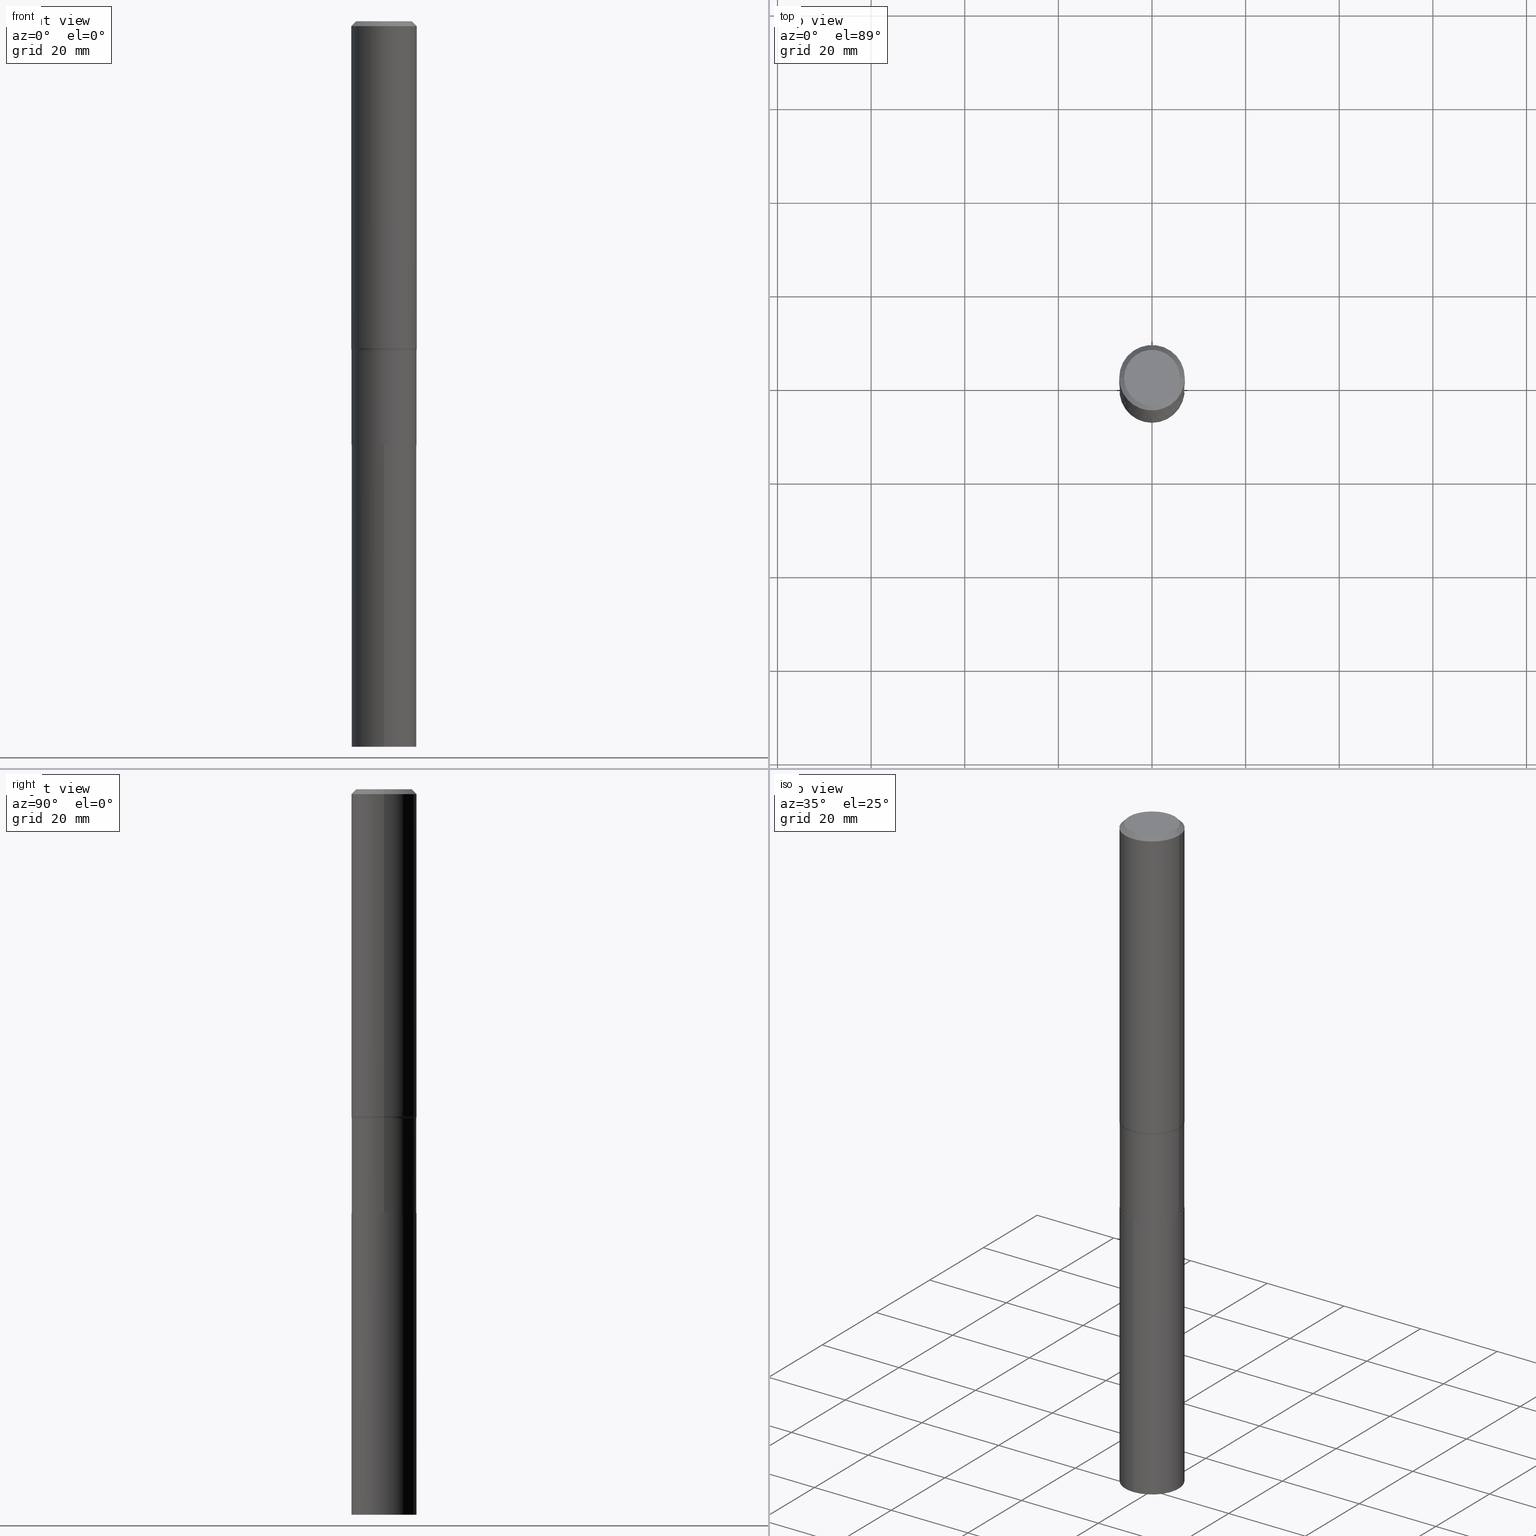
[diagram: canonical four-view strip — front | top / right | iso, engineering-drawing reading convention]
A machine part, canonical four-view strip (front | top / right | iso — engineering-drawing reading convention). The complete STEP part file that produces these views, byte-faithful:
ISO-10303-21;
HEADER;
FILE_DESCRIPTION (( 'STEP AP203' ),
    '1' );
FILE_NAME ('58914.STEP',
    '2024-04-19T14:50:41',
    ( '' ),
    ( '' ),
    'SwSTEP 2.0',
    'SolidWorks 2023',
    '' );
FILE_SCHEMA (( 'CONFIG_CONTROL_DESIGN' ));
ENDSEC;

DATA;
#1 = LINE ( 'NONE', #142, #293 ) ;
#2 = EDGE_LOOP ( 'NONE', ( #33, #403 ) ) ;
#3 = CLOSED_SHELL ( 'NONE', ( #58, #6, #250, #230 ) ) ;
#4 = CIRCLE ( 'NONE', #353, 0.2729500000000000259 ) ;
#5 = DIRECTION ( 'NONE',  ( -2.445078219404103595E-29, 3.492040681344403691E-15, 1.000000000000000000 ) ) ;
#6 = ADVANCED_FACE ( 'NONE', ( #275 ), #156, .F. ) ;
#7 = ORIENTED_EDGE ( 'NONE', *, *, #196, .T. ) ;
#8 = EDGE_CURVE ( 'NONE', #107, #31, #197, .T. ) ;
#9 = EDGE_LOOP ( 'NONE', ( #37, #52, #13, #222 ) ) ;
#10 = CIRCLE ( 'NONE', #187, 0.2729500000000000259 ) ;
#11 = AXIS2_PLACEMENT_3D ( 'NONE', #437, #335, #83 ) ;
#12 = LOCAL_TIME ( 10, 50, 41.00000000000000000, #418 ) ;
#13 = ORIENTED_EDGE ( 'NONE', *, *, #448, .T. ) ;
#14 = DIRECTION ( 'NONE',  ( 1.000000000000000000, 0.000000000000000000, 0.000000000000000000 ) ) ;
#15 = CARTESIAN_POINT ( 'NONE',  ( 0.2756000000000001782, -1.924504513970336532E-15, 1.343874319409360828E-29 ) ) ;
#16 = APPLICATION_PROTOCOL_DEFINITION ( 'international standard', 'config_control_design', 1994, #67 ) ;
#17 = EDGE_LOOP ( 'NONE', ( #7, #365, #430, #263 ) ) ;
#18 = CONICAL_SURFACE ( 'NONE', #464, 0.2729500000000000259, 0.7853981633967311859 ) ;
#19 = CIRCLE ( 'NONE', #255, 0.2756000000000000116 ) ;
#20 = DIRECTION ( 'NONE',  ( -2.445468806185136597E-29, 3.491481338843145583E-15, 1.000000000000000000 ) ) ;
#21 = CALENDAR_DATE ( 2024, 19, 4 ) ;
#22 = CYLINDRICAL_SURFACE ( 'NONE', #177, 0.2734499999999999709 ) ;
#23 = DIRECTION ( 'NONE',  ( -2.445468806185136597E-29, 3.491481338843145583E-15, 1.000000000000000000 ) ) ;
#24 = CALENDAR_DATE ( 2024, 19, 4 ) ;
#25 = CARTESIAN_POINT ( 'NONE',  ( -1.909491144213222460E-15, -0.2734500000000124609, -3.563399999999998791 ) ) ;
#26 = VECTOR ( 'NONE', #427, 39.37007874015748143 ) ;
#27 = CARTESIAN_POINT ( 'NONE',  ( 6.774926780655301628E-29, -9.672799901131050360E-15, -2.770399999999999974 ) ) ;
#28 = APPROVAL ( #126, 'UNSPECIFIED' ) ;
#29 = EDGE_CURVE ( 'NONE', #232, #75, #279, .T. ) ;
#30 = DIRECTION ( 'NONE',  ( -2.445468806185136877E-29, 3.491481338843145188E-15, 1.000000000000000000 ) ) ;
#31 = VERTEX_POINT ( 'NONE', #451 ) ;
#32 = DIRECTION ( 'NONE',  ( -2.445468806185136597E-29, 3.491481338843145583E-15, 1.000000000000000000 ) ) ;
#33 = ORIENTED_EDGE ( 'NONE', *, *, #233, .T. ) ;
#34 = CIRCLE ( 'NONE', #221, 0.08000000000000002942 ) ;
#35 = DIRECTION ( 'NONE',  ( -2.445468806185136597E-29, 3.491481338843145583E-15, 1.000000000000000000 ) ) ;
#36 = CARTESIAN_POINT ( 'NONE',  ( -1.002970424325033577E-46, 1.431975951230896486E-32, 4.101342130344485961E-18 ) ) ;
#37 = ORIENTED_EDGE ( 'NONE', *, *, #29, .F. ) ;
#38 = DIRECTION ( 'NONE',  ( -2.445078219404103595E-29, 3.492040681344403296E-15, 1.000000000000000000 ) ) ;
#39 = VERTEX_POINT ( 'NONE', #312 ) ;
#40 = VECTOR ( 'NONE', #123, 39.37007874015748143 ) ;
#41 = ORGANIZATION ( 'UNSPECIFIED', 'UNSPECIFIED', '' ) ;
#42 = CARTESIAN_POINT ( 'NONE',  ( 8.714183543960115944E-29, -1.244154460283366546E-14, -3.563400000000000123 ) ) ;
#43 = ORIENTED_EDGE ( 'NONE', *, *, #285, .F. ) ;
#44 = ADVANCED_FACE ( 'NONE', ( #119 ), #18, .T. ) ;
#45 = EDGE_CURVE ( 'NONE', #276, #75, #88, .T. ) ;
#46 = EDGE_LOOP ( 'NONE', ( #101, #84, #281, #393 ) ) ;
#47 = CARTESIAN_POINT ( 'NONE',  ( -0.3534499999999999309, -7.161386601586975955E-15, -2.770399999999999974 ) ) ;
#48 = AXIS2_PLACEMENT_3D ( 'NONE', #249, #87, #210 ) ;
#49 = LOCAL_TIME ( 10, 50, 41.00000000000000000, #404 ) ;
#50 = PERSON_AND_ORGANIZATION ( #373, #41 ) ;
#51 = EDGE_CURVE ( 'NONE', #31, #152, #127, .T. ) ;
#52 = ORIENTED_EDGE ( 'NONE', *, *, #176, .F. ) ;
#53 = DIRECTION ( 'NONE',  ( -6.982962677686265922E-15, -1.000000000000000000, 3.492040681344403296E-15 ) ) ;
#54 = PERSON_AND_ORGANIZATION ( #373, #41 ) ;
#55 = FACE_OUTER_BOUND ( 'NONE', #302, .T. ) ;
#56 = ADVANCED_FACE ( 'NONE', ( #417 ), #254, .T. ) ;
#57 = CARTESIAN_POINT ( 'NONE',  ( 0.2756000000000003447, -1.153298364311193009E-14, -2.751977798720021351 ) ) ;
#58 = ADVANCED_FACE ( 'NONE', ( #55 ), #205, .T. ) ;
#59 = PERSON_AND_ORGANIZATION ( #373, #41 ) ;
#60 = CYLINDRICAL_SURFACE ( 'NONE', #389, 0.2756000000000001782 ) ;
#61 = PERSON_AND_ORGANIZATION ( #373, #41 ) ;
#62 = CARTESIAN_POINT ( 'NONE',  ( 0.2729500000000000259, -1.434754426570813484E-14, -3.563400000000000567 ) ) ;
#63 = APPROVAL_ROLE ( '' ) ;
#64 = CARTESIAN_POINT ( 'NONE',  ( -5.014852121625167883E-47, 7.159879756154482429E-33, 2.050671065172242981E-18 ) ) ;
#65 = AXIS2_PLACEMENT_3D ( 'NONE', #259, #361, #106 ) ;
#66 = DIRECTION ( 'NONE',  ( 1.000000000000000000, -6.982962677686268288E-15, 4.883557194083114022E-29 ) ) ;
#67 = APPLICATION_CONTEXT ( 'configuration controlled 3d designs of mechanical parts and assemblies' ) ;
#68 = CARTESIAN_POINT ( 'NONE',  ( 1.942979110936112080E-15, 0.2734499999999787101, -6.102400000000002045 ) ) ;
#69 = ORIENTED_EDGE ( 'NONE', *, *, #394, .T. ) ;
#70 = PRODUCT ( '58914', '58914', '', ( #108 ) ) ;
#71 = FACE_OUTER_BOUND ( 'NONE', #46, .T. ) ;
#72 = AXIS2_PLACEMENT_3D ( 'NONE', #78, #151, #14 ) ;
#73 = EDGE_CURVE ( 'NONE', #117, #467, #382, .T. ) ;
#74 = DIRECTION ( 'NONE',  ( 0.7071067811865452413, -7.319954787623248157E-15, -0.7071067811865497932 ) ) ;
#75 = VERTEX_POINT ( 'NONE', #246 ) ;
#76 = DIRECTION ( 'NONE',  ( 1.000000000000000000, -6.982962677686264344E-15, 0.000000000000000000 ) ) ;
#77 = CALENDAR_DATE ( 2024, 19, 4 ) ;
#78 = CARTESIAN_POINT ( 'NONE',  ( 0.000000000000000000, 0.000000000000000000, 0.000000000000000000 ) ) ;
#79 = ORIENTED_EDGE ( 'NONE', *, *, #273, .T. ) ;
#80 = ORIENTED_EDGE ( 'NONE', *, *, #51, .F. ) ;
#81 = ORIENTED_EDGE ( 'NONE', *, *, #423, .F. ) ;
#82 = LOCAL_TIME ( 10, 50, 41.00000000000000000, #157 ) ;
#83 = DIRECTION ( 'NONE',  ( -1.000000000000000000, 6.982962677686267499E-15, 0.000000000000000000 ) ) ;
#84 = ORIENTED_EDGE ( 'NONE', *, *, #285, .T. ) ;
#85 = DIRECTION ( 'NONE',  ( 1.000000000000000000, -6.982962677686267499E-15, 0.000000000000000000 ) ) ;
#86 = DATE_AND_TIME ( #209, #82 ) ;
#87 = DIRECTION ( 'NONE',  ( -2.445468806185136597E-29, 3.491481338843145583E-15, 1.000000000000000000 ) ) ;
#88 = CIRCLE ( 'NONE', #112, 0.2734499999999999154 ) ;
#89 = DIRECTION ( 'NONE',  ( -6.982962677686265922E-15, -1.000000000000000000, 3.996120670929621909E-15 ) ) ;
#90 = APPROVAL_DATE_TIME ( #121, #28 ) ;
#91 = DIRECTION ( 'NONE',  ( 2.438088387897960049E-29, -3.491481338843145188E-15, -1.000000000000000000 ) ) ;
#92 = ADVANCED_FACE ( 'NONE', ( #453 ), #60, .T. ) ;
#93 = DIRECTION ( 'NONE',  ( -2.445468806185136597E-29, 3.491481338843145583E-15, 1.000000000000000000 ) ) ;
#94 = CONICAL_SURFACE ( 'NONE', #168, 0.2756000000000000116, 0.7853981633974450594 ) ;
#95 = LINE ( 'NONE', #355, #411 ) ;
#96 = AXIS2_PLACEMENT_3D ( 'NONE', #245, #20, #362 ) ;
#97 = CC_DESIGN_APPROVAL ( #28, ( #240 ) ) ;
#98 = CARTESIAN_POINT ( 'NONE',  ( 8.712960809557023143E-29, -1.243979886216424317E-14, -3.562899999999999956 ) ) ;
#99 = ORIENTED_EDGE ( 'NONE', *, *, #51, .T. ) ;
#100 = CARTESIAN_POINT ( 'NONE',  ( 0.2756000000000000116, -2.035091086733610886E-15, -0.04134000000000026542 ) ) ;
#101 = ORIENTED_EDGE ( 'NONE', *, *, #273, .F. ) ;
#102 = EDGE_CURVE ( 'NONE', #149, #117, #10, .T. ) ;
#103 = DIRECTION ( 'NONE',  ( 1.000000000000000000, -6.982962677686267499E-15, 4.876176775795935793E-29 ) ) ;
#104 = AXIS2_PLACEMENT_3D ( 'NONE', #125, #172, #315 ) ;
#105 = AXIS2_PLACEMENT_3D ( 'NONE', #398, #32, #428 ) ;
#106 = DIRECTION ( 'NONE',  ( 6.982962677686265922E-15, 1.000000000000000000, -3.492040681344403296E-15 ) ) ;
#107 = VERTEX_POINT ( 'NONE', #57 ) ;
#108 = MECHANICAL_CONTEXT ( 'NONE', #322, 'mechanical' ) ;
#109 = EDGE_CURVE ( 'NONE', #467, #276, #381, .T. ) ;
#110 = CARTESIAN_POINT ( 'NONE',  ( 0.3534499999999999309, -1.214092805955926125E-14, -2.770399999999999974 ) ) ;
#111 = DIRECTION ( 'NONE',  ( 1.000000000000000000, -6.982962677686267499E-15, 0.000000000000000000 ) ) ;
#112 = AXIS2_PLACEMENT_3D ( 'NONE', #228, #307, #111 ) ;
#113 = VECTOR ( 'NONE', #38, 39.37007874015748143 ) ;
#114 =( CONVERSION_BASED_UNIT ( 'INCH', #277 ) LENGTH_UNIT ( ) NAMED_UNIT ( #238 ) );
#115 = ORIENTED_EDGE ( 'NONE', *, *, #109, .F. ) ;
#116 = DIRECTION ( 'NONE',  ( -2.445468806185136597E-29, 3.491481338843145583E-15, 1.000000000000000000 ) ) ;
#117 = VERTEX_POINT ( 'NONE', #208 ) ;
#118 = ADVANCED_FACE ( 'NONE', ( #348 ), #94, .T. ) ;
#119 = FACE_OUTER_BOUND ( 'NONE', #407, .T. ) ;
#120 = AXIS2_PLACEMENT_3D ( 'NONE', #256, #391, #66 ) ;
#121 = DATE_AND_TIME ( #24, #12 ) ;
#122 = DIRECTION ( 'NONE',  ( -2.445468806185136597E-29, 3.491481338843145583E-15, 1.000000000000000000 ) ) ;
#123 = DIRECTION ( 'NONE',  ( -2.445468806185136877E-29, 3.491481338843145188E-15, 1.000000000000000000 ) ) ;
#124 = ADVANCED_FACE ( 'NONE', ( #354 ), #22, .T. ) ;
#125 = CARTESIAN_POINT ( 'NONE',  ( 8.714183543960115944E-29, -1.244154460283366546E-14, -3.563400000000000123 ) ) ;
#126 = APPROVAL_STATUS ( 'not_yet_approved' ) ;
#127 = CIRCLE ( 'NONE', #48, 0.2756000000000000116 ) ;
#128 = APPROVAL_PERSON_ORGANIZATION ( #199, #291, #303 ) ;
#129 = FACE_OUTER_BOUND ( 'NONE', #2, .T. ) ;
#130 = CC_DESIGN_SECURITY_CLASSIFICATION ( #240, ( #397 ) ) ;
#131 = EDGE_CURVE ( 'NONE', #310, #467, #425, .T. ) ;
#132 = DIRECTION ( 'NONE',  ( 1.000000000000000000, -6.982962677686264344E-15, 0.000000000000000000 ) ) ;
#133 = DIRECTION ( 'NONE',  ( 1.000000000000000000, -6.982962677686268288E-15, 4.883557194083114022E-29 ) ) ;
#134 = DIRECTION ( 'NONE',  ( -6.982962677686265922E-15, -1.000000000000000000, 3.996120670929621909E-15 ) ) ;
#135 = AXIS2_PLACEMENT_3D ( 'NONE', #98, #301, #76 ) ;
#136 = CARTESIAN_POINT ( 'NONE',  ( 1.942979110936080920E-15, 0.2734499999999875919, -3.563400000000001011 ) ) ;
#137 = EDGE_CURVE ( 'NONE', #333, #260, #359, .T. ) ;
#138 = ORIENTED_EDGE ( 'NONE', *, *, #131, .T. ) ;
#139 = DIRECTION ( 'NONE',  ( -2.445468806185136597E-29, 3.491481338843145583E-15, 1.000000000000000000 ) ) ;
#140 = EDGE_LOOP ( 'NONE', ( #304, #138, #324, #219 ) ) ;
#141 = MANIFOLD_SOLID_BREP ( 'Body-Move/Copy2[1]', #3 ) ;
#142 = CARTESIAN_POINT ( 'NONE',  ( -0.2729500000000000259, -1.050211820557647340E-14, -3.563400000000000567 ) ) ;
#143 = CIRCLE ( 'NONE', #426, 0.2734500000000000264 ) ;
#144 = FACE_OUTER_BOUND ( 'NONE', #358, .T. ) ;
#145 = MANIFOLD_SOLID_BREP ( 'Body-Move/Copy2[2]', #376 ) ;
#146 = DIRECTION ( 'NONE',  ( 1.000000000000000000, -6.982962677686257244E-15, 0.000000000000000000 ) ) ;
#147 = DIRECTION ( 'NONE',  ( 7.105427357601001859E-15, 1.000000000000000000, -3.491481338843145583E-15 ) ) ;
#148 = CC_DESIGN_PERSON_AND_ORGANIZATION_ASSIGNMENT ( #59, #248, ( #397 ) ) ;
#149 = VERTEX_POINT ( 'NONE', #253 ) ;
#150 = AXIS2_PLACEMENT_3D ( 'NONE', #163, #316, #89 ) ;
#151 = DIRECTION ( 'NONE',  ( 0.000000000000000000, 0.000000000000000000, 1.000000000000000000 ) ) ;
#152 = VERTEX_POINT ( 'NONE', #346 ) ;
#153 = EDGE_CURVE ( 'NONE', #333, #39, #166, .T. ) ;
#154 = ADVANCED_FACE ( 'NONE', ( #129 ), #422, .F. ) ;
#155 = FACE_OUTER_BOUND ( 'NONE', #380, .T. ) ;
#156 = PLANE ( 'NONE',  #450 ) ;
#157 = COORDINATED_UNIVERSAL_TIME_OFFSET ( 5, 0, .BEHIND. ) ;
#158 = EDGE_LOOP ( 'NONE', ( #225, #235, #342, #401 ) ) ;
#159 = AXIS2_PLACEMENT_3D ( 'NONE', #47, #147, #369 ) ;
#160 = AXIS2_PLACEMENT_3D ( 'NONE', #173, #5, #134 ) ;
#161 = PERSON_AND_ORGANIZATION_ROLE ( 'classification_officer' ) ;
#162 = CARTESIAN_POINT ( 'NONE',  ( 8.712960809557023143E-29, -1.243979886216424317E-14, -3.562899999999999956 ) ) ;
#163 = CARTESIAN_POINT ( 'NONE',  ( 1.492223714302713929E-28, -2.130783589276710899E-14, -6.102400000000001157 ) ) ;
#164 = DATE_TIME_ROLE ( 'classification_date' ) ;
#165 = CC_DESIGN_PERSON_AND_ORGANIZATION_ASSIGNMENT ( #54, #161, ( #240 ) ) ;
#166 = LINE ( 'NONE', #25, #420 ) ;
#167 = ADVANCED_FACE ( 'NONE', ( #212 ), #431, .F. ) ;
#168 = AXIS2_PLACEMENT_3D ( 'NONE', #385, #424, #350 ) ;
#169 = VECTOR ( 'NONE', #339, 39.37007874015748143 ) ;
#170 = LOCAL_TIME ( 10, 50, 41.00000000000000000, #416 ) ;
#171 = DIRECTION ( 'NONE',  ( -2.445078219404103595E-29, 3.492040681344403296E-15, 1.000000000000000000 ) ) ;
#172 = DIRECTION ( 'NONE',  ( -2.445078219404103595E-29, 3.492040681344403691E-15, 1.000000000000000000 ) ) ;
#173 = CARTESIAN_POINT ( 'NONE',  ( 1.492223714302713929E-28, -2.130783589276710899E-14, -6.102400000000001157 ) ) ;
#174 = ORIENTED_EDGE ( 'NONE', *, *, #102, .T. ) ;
#175 = EDGE_CURVE ( 'NONE', #75, #276, #280, .T. ) ;
#176 = EDGE_CURVE ( 'NONE', #107, #232, #206, .T. ) ;
#177 = AXIS2_PLACEMENT_3D ( 'NONE', #456, #287, #419 ) ;
#178 = CARTESIAN_POINT ( 'NONE',  ( 8.714183543960117066E-29, -1.244154460283366704E-14, -3.563400000000000567 ) ) ;
#179 = CIRCLE ( 'NONE', #331, 0.2342600000000000238 ) ;
#180 = CARTESIAN_POINT ( 'NONE',  ( 0.2342600000000000238, -1.821115673845785155E-15, 4.101342130356573868E-18 ) ) ;
#181 = ORIENTED_EDGE ( 'NONE', *, *, #443, .T. ) ;
#182 = LINE ( 'NONE', #100, #360 ) ;
#183 = APPROVAL ( #214, 'UNSPECIFIED' ) ;
#184 = ORIENTED_EDGE ( 'NONE', *, *, #8, .F. ) ;
#185 = EDGE_CURVE ( 'NONE', #260, #333, #189, .T. ) ;
#186 = CARTESIAN_POINT ( 'NONE',  ( -0.2756000000000000116, 1.780166675422558965E-15, -0.04134000000000026542 ) ) ;
#187 = AXIS2_PLACEMENT_3D ( 'NONE', #454, #23, #251 ) ;
#188 = VERTEX_POINT ( 'NONE', #180 ) ;
#189 = CIRCLE ( 'NONE', #160, 0.2734500000000000264 ) ;
#190 = CARTESIAN_POINT ( 'NONE',  ( 0.000000000000000000, 0.000000000000000000, 0.000000000000000000 ) ) ;
#191 = ORIENTED_EDGE ( 'NONE', *, *, #29, .T. ) ;
#192 = PRODUCT_RELATED_PRODUCT_CATEGORY ( 'detail', '', ( #70 ) ) ;
#193 = CARTESIAN_POINT ( 'NONE',  ( 3.733284674374409565E-29, -1.957447527923830843E-14, -3.563400000000000567 ) ) ;
#194 = ORIENTED_EDGE ( 'NONE', *, *, #176, .T. ) ;
#195 = DIRECTION ( 'NONE',  ( -6.982962677686265922E-15, -1.000000000000000000, 3.996120670929621909E-15 ) ) ;
#196 = EDGE_CURVE ( 'NONE', #117, #149, #4, .T. ) ;
#197 = LINE ( 'NONE', #15, #169 ) ;
#198 = APPROVAL_PERSON_ORGANIZATION ( #61, #183, #345 ) ;
#199 = PERSON_AND_ORGANIZATION ( #373, #41 ) ;
#200 = ORIENTED_EDGE ( 'NONE', *, *, #185, .T. ) ;
#201 =( NAMED_UNIT ( * ) SI_UNIT ( $, .STERADIAN. ) SOLID_ANGLE_UNIT ( ) );
#202 = CARTESIAN_POINT ( 'NONE',  ( 8.714183543960117066E-29, -1.244154460283366704E-14, -3.563400000000000567 ) ) ;
#203 = CC_DESIGN_PERSON_AND_ORGANIZATION_ASSIGNMENT ( #252, #288, ( #432 ) ) ;
#204 = DATE_TIME_ROLE ( 'creation_date' ) ;
#205 = CYLINDRICAL_SURFACE ( 'NONE', #104, 0.2734500000000000264 ) ;
#206 = CIRCLE ( 'NONE', #96, 0.2756000000000003447 ) ;
#207 = PERSON_AND_ORGANIZATION ( #373, #41 ) ;
#208 = CARTESIAN_POINT ( 'NONE',  ( 0.2729500000000000259, -1.434754426570813484E-14, -3.563400000000000567 ) ) ;
#209 = CALENDAR_DATE ( 2024, 19, 4 ) ;
#210 = DIRECTION ( 'NONE',  ( 1.000000000000000000, -6.982962677686267499E-15, 0.000000000000000000 ) ) ;
#211 = EDGE_CURVE ( 'NONE', #447, #152, #364, .T. ) ;
#212 = FACE_OUTER_BOUND ( 'NONE', #9, .T. ) ;
#213 = EDGE_CURVE ( 'NONE', #467, #310, #325, .T. ) ;
#214 = APPROVAL_STATUS ( 'not_yet_approved' ) ;
#215 = AXIS2_PLACEMENT_3D ( 'NONE', #64, #91, #388 ) ;
#216 = CARTESIAN_POINT ( 'NONE',  ( 6.774926780655301628E-29, -9.672799901131050360E-15, -2.770399999999999974 ) ) ;
#217 = LINE ( 'NONE', #136, #113 ) ;
#218 = DIRECTION ( 'NONE',  ( -2.445468806185136877E-29, 3.491481338843145188E-15, 1.000000000000000000 ) ) ;
#219 = ORIENTED_EDGE ( 'NONE', *, *, #175, .F. ) ;
#220 = CARTESIAN_POINT ( 'NONE',  ( -0.2734500000000000819, -9.113320270711650646E-15, -3.562899999999999956 ) ) ;
#221 = AXIS2_PLACEMENT_3D ( 'NONE', #110, #305, #146 ) ;
#222 = ORIENTED_EDGE ( 'NONE', *, *, #45, .T. ) ;
#223 = CC_DESIGN_DATE_AND_TIME_ASSIGNMENT ( #86, #164, ( #240 ) ) ;
#224 = DIRECTION ( 'NONE',  ( 1.000000000000000000, -6.982962677686267499E-15, 4.876157962347795834E-29 ) ) ;
#225 = ORIENTED_EDGE ( 'NONE', *, *, #306, .F. ) ;
#226 = CARTESIAN_POINT ( 'NONE',  ( -1.002970424325033577E-46, 1.431975951230896486E-32, 4.101342130344485961E-18 ) ) ;
#227 = APPLICATION_PROTOCOL_DEFINITION ( 'international standard', 'config_control_design', 1994, #322 ) ;
#228 = CARTESIAN_POINT ( 'NONE',  ( 6.774926780655301628E-29, -9.672799901131050360E-15, -2.770399999999999974 ) ) ;
#229 = CIRCLE ( 'NONE', #465, 0.2734500000000000264 ) ;
#230 = ADVANCED_FACE ( 'NONE', ( #328 ), #400, .F. ) ;
#231 = DIRECTION ( 'NONE',  ( -2.445468806185136597E-29, 3.491481338843145583E-15, 1.000000000000000000 ) ) ;
#232 = VERTEX_POINT ( 'NONE', #326 ) ;
#233 = EDGE_CURVE ( 'NONE', #447, #188, #179, .T. ) ;
#234 = DIRECTION ( 'NONE',  ( -2.438088387897960049E-29, 3.491481338843145188E-15, 1.000000000000000000 ) ) ;
#235 = ORIENTED_EDGE ( 'NONE', *, *, #233, .F. ) ;
#236 = ADVANCED_BREP_SHAPE_REPRESENTATION ( '58914', ( #141, #145, #72 ), #286 ) ;
#237 = ORIENTED_EDGE ( 'NONE', *, *, #196, .F. ) ;
#238 = DIMENSIONAL_EXPONENTS ( 1.000000000000000000, 0.000000000000000000, 0.000000000000000000, 0.000000000000000000, 0.000000000000000000, 0.000000000000000000, 0.000000000000000000 ) ;
#239 = AXIS2_PLACEMENT_3D ( 'NONE', #435, #357, #395 ) ;
#240 = SECURITY_CLASSIFICATION ( '', '', #452 ) ;
#241 = APPROVAL_PERSON_ORGANIZATION ( #317, #28, #63 ) ;
#242 = CARTESIAN_POINT ( 'NONE',  ( 8.714183543960115944E-29, -1.244154460283366546E-14, -3.563400000000000123 ) ) ;
#243 = EDGE_CURVE ( 'NONE', #188, #447, #319, .T. ) ;
#244 = ORIENTED_EDGE ( 'NONE', *, *, #269, .T. ) ;
#245 = CARTESIAN_POINT ( 'NONE',  ( 6.729875862083849729E-29, -9.608479129141591981E-15, -2.751977798720021351 ) ) ;
#246 = CARTESIAN_POINT ( 'NONE',  ( -0.2734499999999999154, -9.113320270711650646E-15, -2.770399999999999974 ) ) ;
#247 = TOROIDAL_SURFACE ( 'NONE', #120, 0.3534499999999999309, 0.08000000000000000167 ) ;
#248 = PERSON_AND_ORGANIZATION_ROLE ( 'creator' ) ;
#249 = CARTESIAN_POINT ( 'NONE',  ( 1.010956804476942048E-30, -1.443378385477765563E-16, -0.04134000000000026542 ) ) ;
#250 = ADVANCED_FACE ( 'NONE', ( #392 ), #267, .T. ) ;
#251 = DIRECTION ( 'NONE',  ( 1.000000000000000000, -6.982962677686266711E-15, 0.000000000000000000 ) ) ;
#252 = PERSON_AND_ORGANIZATION ( #373, #41 ) ;
#253 = CARTESIAN_POINT ( 'NONE',  ( -0.2729500000000000259, -1.049946897840236141E-14, -3.563400000000000567 ) ) ;
#254 = CONICAL_SURFACE ( 'NONE', #366, 0.2729500000000000259, 0.7853981633967311859 ) ;
#255 = AXIS2_PLACEMENT_3D ( 'NONE', #372, #116, #337 ) ;
#256 = CARTESIAN_POINT ( 'NONE',  ( 6.774926780655301628E-29, -9.672799901131050360E-15, -2.770399999999999974 ) ) ;
#257 = ADVANCED_FACE ( 'NONE', ( #71 ), #298, .T. ) ;
#258 = UNCERTAINTY_MEASURE_WITH_UNIT (LENGTH_MEASURE( 1.000000000000000082E-05 ), #114, 'distance_accuracy_value', 'NONE');
#259 = CARTESIAN_POINT ( 'NONE',  ( 8.714183543960115944E-29, -1.244154460283366546E-14, -3.563400000000000123 ) ) ;
#260 = VERTEX_POINT ( 'NONE', #68 ) ;
#261 = CARTESIAN_POINT ( 'NONE',  ( 1.942979110936143635E-15, 0.2734499999999875919, -3.563400000000001011 ) ) ;
#262 = PRODUCT_DEFINITION_SHAPE ( 'NONE', 'NONE',  #432 ) ;
#263 = ORIENTED_EDGE ( 'NONE', *, *, #73, .F. ) ;
#264 = LINE ( 'NONE', #462, #383 ) ;
#265 = AXIS2_PLACEMENT_3D ( 'NONE', #216, #292, #85 ) ;
#266 = ORIENTED_EDGE ( 'NONE', *, *, #443, .F. ) ;
#267 = CYLINDRICAL_SURFACE ( 'NONE', #239, 0.2734500000000000264 ) ;
#268 = FACE_OUTER_BOUND ( 'NONE', #158, .T. ) ;
#269 = EDGE_CURVE ( 'NONE', #260, #338, #217, .T. ) ;
#270 = ORIENTED_EDGE ( 'NONE', *, *, #131, .F. ) ;
#271 = ORIENTED_EDGE ( 'NONE', *, *, #243, .F. ) ;
#272 = AXIS2_PLACEMENT_3D ( 'NONE', #226, #139, #224 ) ;
#273 = EDGE_CURVE ( 'NONE', #232, #152, #264, .T. ) ;
#274 =( NAMED_UNIT ( * ) PLANE_ANGLE_UNIT ( ) SI_UNIT ( $, .RADIAN. ) );
#275 = FACE_OUTER_BOUND ( 'NONE', #446, .T. ) ;
#276 = VERTEX_POINT ( 'NONE', #296 ) ;
#277 = LENGTH_MEASURE_WITH_UNIT ( LENGTH_MEASURE( 0.02539999999999999897 ), #406 );
#278 = ORIENTED_EDGE ( 'NONE', *, *, #423, .T. ) ;
#279 = CIRCLE ( 'NONE', #159, 0.08000000000000002942 ) ;
#280 = CIRCLE ( 'NONE', #265, 0.2734499999999999154 ) ;
#281 = ORIENTED_EDGE ( 'NONE', *, *, #8, .T. ) ;
#282 = DIRECTION ( 'NONE',  ( 0.7071067811860403118, -2.468850131076945266E-15, 0.7071067811870545006 ) ) ;
#283 = PERSON_AND_ORGANIZATION_ROLE ( 'design_supplier' ) ;
#284 = DIRECTION ( 'NONE',  ( 1.000000000000000000, -6.982962677686267499E-15, 4.876176775795935793E-29 ) ) ;
#285 = EDGE_CURVE ( 'NONE', #232, #107, #367, .T. ) ;
#286 =( GEOMETRIC_REPRESENTATION_CONTEXT ( 3 ) GLOBAL_UNCERTAINTY_ASSIGNED_CONTEXT ( ( #258 ) ) GLOBAL_UNIT_ASSIGNED_CONTEXT ( ( #114, #274, #201 ) ) REPRESENTATION_CONTEXT ( 'NONE', 'WORKASPACE' ) );
#287 = DIRECTION ( 'NONE',  ( -2.445468806185136597E-29, 3.491481338843145583E-15, 1.000000000000000000 ) ) ;
#288 = PERSON_AND_ORGANIZATION_ROLE ( 'creator' ) ;
#289 = CARTESIAN_POINT ( 'NONE',  ( 0.000000000000000000, 0.000000000000000000, 0.000000000000000000 ) ) ;
#290 = DESIGN_CONTEXT ( 'detailed design', #67, 'design' ) ;
#291 = APPROVAL ( #343, 'UNSPECIFIED' ) ;
#292 = DIRECTION ( 'NONE',  ( -2.445468806185136597E-29, 3.491481338843145583E-15, 1.000000000000000000 ) ) ;
#293 = VECTOR ( 'NONE', #332, 39.37007874015748854 ) ;
#294 = DIRECTION ( 'NONE',  ( 1.000000000000000000, -6.982962677686266711E-15, 0.000000000000000000 ) ) ;
#295 = ORIENTED_EDGE ( 'NONE', *, *, #45, .F. ) ;
#296 = CARTESIAN_POINT ( 'NONE',  ( 0.2734499999999999154, -1.158229104534435959E-14, -2.770399999999999974 ) ) ;
#297 = ORIENTED_EDGE ( 'NONE', *, *, #153, .F. ) ;
#298 = CYLINDRICAL_SURFACE ( 'NONE', #440, 0.2756000000000001782 ) ;
#299 = ORIENTED_EDGE ( 'NONE', *, *, #137, .F. ) ;
#300 = CONICAL_SURFACE ( 'NONE', #11, 0.2756000000000000116, 0.7853981633974450594 ) ;
#301 = DIRECTION ( 'NONE',  ( -2.445468806185136597E-29, 3.491481338843145583E-15, 1.000000000000000000 ) ) ;
#302 = EDGE_LOOP ( 'NONE', ( #436, #244, #266, #297 ) ) ;
#303 = APPROVAL_ROLE ( '' ) ;
#304 = ORIENTED_EDGE ( 'NONE', *, *, #394, .F. ) ;
#305 = DIRECTION ( 'NONE',  ( -6.982962677686266711E-15, -1.000000000000000000, 3.491481338843145583E-15 ) ) ;
#306 = EDGE_CURVE ( 'NONE', #188, #31, #182, .T. ) ;
#307 = DIRECTION ( 'NONE',  ( -2.445468806185136597E-29, 3.491481338843145583E-15, 1.000000000000000000 ) ) ;
#308 = DIRECTION ( 'NONE',  ( 1.000000000000000000, -6.982962677686267499E-15, 4.876176775795935793E-29 ) ) ;
#309 = ORIENTED_EDGE ( 'NONE', *, *, #306, .T. ) ;
#310 = VERTEX_POINT ( 'NONE', #220 ) ;
#311 = DIRECTION ( 'NONE',  ( -2.445078219404103595E-29, 3.492040681344403691E-15, 1.000000000000000000 ) ) ;
#312 = CARTESIAN_POINT ( 'NONE',  ( -1.909491144213222460E-15, -0.2734500000000124609, -3.563399999999998791 ) ) ;
#313 = EDGE_LOOP ( 'NONE', ( #271, #309, #99, #371 ) ) ;
#314 = COORDINATED_UNIVERSAL_TIME_OFFSET ( 5, 0, .BEHIND. ) ;
#315 = DIRECTION ( 'NONE',  ( -6.982962677686265922E-15, -1.000000000000000000, 3.996120670929621909E-15 ) ) ;
#316 = DIRECTION ( 'NONE',  ( -2.445078219404103595E-29, 3.492040681344403691E-15, 1.000000000000000000 ) ) ;
#317 = PERSON_AND_ORGANIZATION ( #373, #41 ) ;
#318 = DIRECTION ( 'NONE',  ( 1.000000000000000000, -6.982962677686266711E-15, 0.000000000000000000 ) ) ;
#319 = CIRCLE ( 'NONE', #272, 0.2342600000000000238 ) ;
#320 = DIRECTION ( 'NONE',  ( -2.445468806185136597E-29, 3.491481338843145583E-15, 1.000000000000000000 ) ) ;
#321 = DIRECTION ( 'NONE',  ( -2.445468806185136597E-29, 3.491481338843145583E-15, 1.000000000000000000 ) ) ;
#322 = APPLICATION_CONTEXT ( 'configuration controlled 3d designs of mechanical parts and assemblies' ) ;
#323 = DIRECTION ( 'NONE',  ( -2.445468806185136597E-29, 3.491481338843145583E-15, 1.000000000000000000 ) ) ;
#324 = ORIENTED_EDGE ( 'NONE', *, *, #109, .T. ) ;
#325 = CIRCLE ( 'NONE', #135, 0.2734500000000000264 ) ;
#326 = CARTESIAN_POINT ( 'NONE',  ( -0.2756000000000003447, -7.650223349386753813E-15, -2.751977798720021351 ) ) ;
#327 = ORIENTED_EDGE ( 'NONE', *, *, #175, .T. ) ;
#328 = FACE_OUTER_BOUND ( 'NONE', #409, .T. ) ;
#329 = ORIENTED_EDGE ( 'NONE', *, *, #73, .T. ) ;
#330 = CARTESIAN_POINT ( 'NONE',  ( -1.909491144213160534E-15, -0.2734500000000213427, -6.102400000000000269 ) ) ;
#331 = AXIS2_PLACEMENT_3D ( 'NONE', #36, #323, #468 ) ;
#332 = DIRECTION ( 'NONE',  ( -0.7071067811860403118, 7.493145998868519270E-15, 0.7071067811870545006 ) ) ;
#333 = VERTEX_POINT ( 'NONE', #330 ) ;
#334 = CC_DESIGN_PERSON_AND_ORGANIZATION_ASSIGNMENT ( #207, #283, ( #397 ) ) ;
#335 = DIRECTION ( 'NONE',  ( 2.445468806185136597E-29, -3.491481338843145583E-15, -1.000000000000000000 ) ) ;
#336 = ORIENTED_EDGE ( 'NONE', *, *, #102, .F. ) ;
#337 = DIRECTION ( 'NONE',  ( 1.000000000000000000, -6.982962677686267499E-15, 0.000000000000000000 ) ) ;
#338 = VERTEX_POINT ( 'NONE', #261 ) ;
#339 = DIRECTION ( 'NONE',  ( -2.445468806185136877E-29, 3.491481338843145188E-15, 1.000000000000000000 ) ) ;
#340 = AXIS2_PLACEMENT_3D ( 'NONE', #27, #461, #133 ) ;
#341 = PLANE ( 'NONE',  #390 ) ;
#342 = ORIENTED_EDGE ( 'NONE', *, *, #211, .T. ) ;
#343 = APPROVAL_STATUS ( 'not_yet_approved' ) ;
#344 = EDGE_LOOP ( 'NONE', ( #463, #200, #412, #81 ) ) ;
#345 = APPROVAL_ROLE ( '' ) ;
#346 = CARTESIAN_POINT ( 'NONE',  ( -0.2756000000000000116, -2.918152704089846015E-15, -0.04134000000000026542 ) ) ;
#347 = CC_DESIGN_APPROVAL ( #291, ( #432 ) ) ;
#348 = FACE_OUTER_BOUND ( 'NONE', #313, .T. ) ;
#349 = SHAPE_DEFINITION_REPRESENTATION ( #262, #236 ) ;
#350 = DIRECTION ( 'NONE',  ( -1.000000000000000000, 6.982962677686267499E-15, 0.000000000000000000 ) ) ;
#351 = CARTESIAN_POINT ( 'NONE',  ( 8.714183543960117066E-29, -1.244154460283366704E-14, -3.563400000000000567 ) ) ;
#352 = EDGE_CURVE ( 'NONE', #149, #310, #1, .T. ) ;
#353 = AXIS2_PLACEMENT_3D ( 'NONE', #178, #35, #294 ) ;
#354 = FACE_OUTER_BOUND ( 'NONE', #140, .T. ) ;
#355 = CARTESIAN_POINT ( 'NONE',  ( -0.2734499999999999709, 1.942979110935993751E-15, -1.345082800430203888E-29 ) ) ;
#356 = ORIENTED_EDGE ( 'NONE', *, *, #352, .F. ) ;
#357 = DIRECTION ( 'NONE',  ( -2.445078219404103595E-29, 3.492040681344403691E-15, 1.000000000000000000 ) ) ;
#358 = EDGE_LOOP ( 'NONE', ( #43, #191, #327, #399 ) ) ;
#359 = CIRCLE ( 'NONE', #150, 0.2734500000000000264 ) ;
#360 = VECTOR ( 'NONE', #74, 39.37007874015748143 ) ;
#361 = DIRECTION ( 'NONE',  ( 2.445078219404103595E-29, -3.492040681344403296E-15, -1.000000000000000000 ) ) ;
#362 = DIRECTION ( 'NONE',  ( 1.000000000000000000, -6.982962677686264344E-15, 0.000000000000000000 ) ) ;
#363 = ORIENTED_EDGE ( 'NONE', *, *, #185, .F. ) ;
#364 = LINE ( 'NONE', #186, #26 ) ;
#365 = ORIENTED_EDGE ( 'NONE', *, *, #352, .T. ) ;
#366 = AXIS2_PLACEMENT_3D ( 'NONE', #351, #320, #318 ) ;
#367 = CIRCLE ( 'NONE', #105, 0.2756000000000003447 ) ;
#368 = DATE_AND_TIME ( #77, #49 ) ;
#369 = DIRECTION ( 'NONE',  ( -1.000000000000000000, 7.105427357600995548E-15, 0.000000000000000000 ) ) ;
#370 = CARTESIAN_POINT ( 'NONE',  ( -0.2342600000000000238, 1.707997756148671759E-15, 4.101342130332794026E-18 ) ) ;
#371 = ORIENTED_EDGE ( 'NONE', *, *, #211, .F. ) ;
#372 = CARTESIAN_POINT ( 'NONE',  ( 1.010956804476942048E-30, -1.443378385477765563E-16, -0.04134000000000026542 ) ) ;
#373 = PERSON ( 'UNSPECIFIED', 'UNSPECIFIED', 'UNSPECIFIED', ('UNSPECIFIED'), ('UNSPECIFIED'), ('UNSPECIFIED') ) ;
#374 = CARTESIAN_POINT ( 'NONE',  ( -2.105372815281584395E-29, -4.569234250443734576E-14, -6.102400000000001157 ) ) ;
#375 = VECTOR ( 'NONE', #282, 39.37007874015748854 ) ;
#376 = CLOSED_SHELL ( 'NONE', ( #56, #118, #92, #387, #433, #124, #167, #257, #459, #154, #414, #44 ) ) ;
#377 = ORIENTED_EDGE ( 'NONE', *, *, #213, .T. ) ;
#378 = LOCAL_TIME ( 10, 50, 41.00000000000000000, #314 ) ;
#379 = FACE_OUTER_BOUND ( 'NONE', #405, .T. ) ;
#380 = EDGE_LOOP ( 'NONE', ( #377, #69, #295, #115 ) ) ;
#381 = LINE ( 'NONE', #460, #40 ) ;
#382 = LINE ( 'NONE', #62, #375 ) ;
#383 = VECTOR ( 'NONE', #218, 39.37007874015748143 ) ;
#384 = APPROVAL_DATE_TIME ( #368, #291 ) ;
#385 = CARTESIAN_POINT ( 'NONE',  ( 1.010956804476942048E-30, -1.443378385477765563E-16, -0.04134000000000026542 ) ) ;
#386 = APPROVAL_DATE_TIME ( #455, #183 ) ;
#387 = ADVANCED_FACE ( 'NONE', ( #144 ), #247, .F. ) ;
#388 = DIRECTION ( 'NONE',  ( -1.000000000000000000, 6.982962677686265922E-15, -4.876176775795935793E-29 ) ) ;
#389 = AXIS2_PLACEMENT_3D ( 'NONE', #289, #93, #284 ) ;
#390 = AXIS2_PLACEMENT_3D ( 'NONE', #193, #234, #445 ) ;
#391 = DIRECTION ( 'NONE',  ( -2.445468806185136597E-29, 3.491481338843145583E-15, 1.000000000000000000 ) ) ;
#392 = FACE_OUTER_BOUND ( 'NONE', #344, .T. ) ;
#393 = ORIENTED_EDGE ( 'NONE', *, *, #444, .F. ) ;
#394 = EDGE_CURVE ( 'NONE', #310, #75, #95, .T. ) ;
#395 = DIRECTION ( 'NONE',  ( -6.982962677686265922E-15, -1.000000000000000000, 3.996120670929621909E-15 ) ) ;
#396 = AXIS2_PLACEMENT_3D ( 'NONE', #162, #321, #132 ) ;
#397 = PRODUCT_DEFINITION_FORMATION_WITH_SPECIFIED_SOURCE ( 'ANY', '', #70, .NOT_KNOWN. ) ;
#398 = CARTESIAN_POINT ( 'NONE',  ( 6.729875862083849729E-29, -9.608479129141591981E-15, -2.751977798720021351 ) ) ;
#399 = ORIENTED_EDGE ( 'NONE', *, *, #448, .F. ) ;
#400 = PLANE ( 'NONE',  #65 ) ;
#401 = ORIENTED_EDGE ( 'NONE', *, *, #444, .T. ) ;
#402 = PERSON_AND_ORGANIZATION_ROLE ( 'design_owner' ) ;
#403 = ORIENTED_EDGE ( 'NONE', *, *, #243, .T. ) ;
#404 = COORDINATED_UNIVERSAL_TIME_OFFSET ( 5, 0, .BEHIND. ) ;
#405 = EDGE_LOOP ( 'NONE', ( #237, #336 ) ) ;
#406 =( LENGTH_UNIT ( ) NAMED_UNIT ( * ) SI_UNIT ( $, .METRE. ) );
#407 = EDGE_LOOP ( 'NONE', ( #356, #174, #329, #270 ) ) ;
#408 = CARTESIAN_POINT ( 'NONE',  ( 0.2734500000000000264, -1.434929000637755398E-14, -3.562899999999999956 ) ) ;
#409 = EDGE_LOOP ( 'NONE', ( #181, #278 ) ) ;
#410 = DIRECTION ( 'NONE',  ( -2.445078219404103595E-29, 3.492040681344403691E-15, 1.000000000000000000 ) ) ;
#411 = VECTOR ( 'NONE', #30, 39.37007874015748143 ) ;
#412 = ORIENTED_EDGE ( 'NONE', *, *, #153, .T. ) ;
#413 = CC_DESIGN_DATE_AND_TIME_ASSIGNMENT ( #449, #204, ( #432 ) ) ;
#414 = ADVANCED_FACE ( 'NONE', ( #379 ), #341, .F. ) ;
#415 = DIRECTION ( 'NONE',  ( 1.000000000000000000, -6.982962677686266711E-15, 0.000000000000000000 ) ) ;
#416 = COORDINATED_UNIVERSAL_TIME_OFFSET ( 5, 0, .BEHIND. ) ;
#417 = FACE_OUTER_BOUND ( 'NONE', #17, .T. ) ;
#418 = COORDINATED_UNIVERSAL_TIME_OFFSET ( 5, 0, .BEHIND. ) ;
#419 = DIRECTION ( 'NONE',  ( 1.000000000000000000, -6.982962677686267499E-15, 4.876176775795935793E-29 ) ) ;
#420 = VECTOR ( 'NONE', #171, 39.37007874015748143 ) ;
#421 = CALENDAR_DATE ( 2024, 19, 4 ) ;
#422 = PLANE ( 'NONE',  #215 ) ;
#423 = EDGE_CURVE ( 'NONE', #338, #39, #143, .T. ) ;
#424 = DIRECTION ( 'NONE',  ( 2.445468806185136597E-29, -3.491481338843145583E-15, -1.000000000000000000 ) ) ;
#425 = CIRCLE ( 'NONE', #396, 0.2734500000000000264 ) ;
#426 = AXIS2_PLACEMENT_3D ( 'NONE', #242, #410, #195 ) ;
#427 = DIRECTION ( 'NONE',  ( -0.7071067811865452413, 2.468850131082233000E-15, -0.7071067811865497932 ) ) ;
#428 = DIRECTION ( 'NONE',  ( 1.000000000000000000, -6.982962677686264344E-15, 0.000000000000000000 ) ) ;
#429 = CARTESIAN_POINT ( 'NONE',  ( 0.000000000000000000, 0.000000000000000000, 0.000000000000000000 ) ) ;
#430 = ORIENTED_EDGE ( 'NONE', *, *, #213, .F. ) ;
#431 = TOROIDAL_SURFACE ( 'NONE', #340, 0.3534499999999999309, 0.08000000000000000167 ) ;
#432 = PRODUCT_DEFINITION ( 'UNKNOWN', '', #397, #290 ) ;
#433 = ADVANCED_FACE ( 'NONE', ( #155 ), #438, .T. ) ;
#434 = CC_DESIGN_APPROVAL ( #183, ( #397 ) ) ;
#435 = CARTESIAN_POINT ( 'NONE',  ( 8.714183543960115944E-29, -1.244154460283366546E-14, -3.563400000000000123 ) ) ;
#436 = ORIENTED_EDGE ( 'NONE', *, *, #137, .T. ) ;
#437 = CARTESIAN_POINT ( 'NONE',  ( 1.010956804476942048E-30, -1.443378385477765563E-16, -0.04134000000000026542 ) ) ;
#438 = CYLINDRICAL_SURFACE ( 'NONE', #457, 0.2734499999999999709 ) ;
#439 = DIRECTION ( 'NONE',  ( -2.445078219404103595E-29, 3.492040681344403296E-15, 1.000000000000000000 ) ) ;
#440 = AXIS2_PLACEMENT_3D ( 'NONE', #429, #466, #103 ) ;
#441 = DIRECTION ( 'NONE',  ( -6.982962677686265922E-15, -1.000000000000000000, 3.996120670929621909E-15 ) ) ;
#442 = EDGE_LOOP ( 'NONE', ( #194, #79, #80, #184 ) ) ;
#443 = EDGE_CURVE ( 'NONE', #39, #338, #229, .T. ) ;
#444 = EDGE_CURVE ( 'NONE', #152, #31, #19, .T. ) ;
#445 = DIRECTION ( 'NONE',  ( 1.000000000000000000, -6.982962677686265922E-15, 4.876176775795935793E-29 ) ) ;
#446 = EDGE_LOOP ( 'NONE', ( #299, #363 ) ) ;
#447 = VERTEX_POINT ( 'NONE', #370 ) ;
#448 = EDGE_CURVE ( 'NONE', #107, #276, #34, .T. ) ;
#449 = DATE_AND_TIME ( #21, #378 ) ;
#450 = AXIS2_PLACEMENT_3D ( 'NONE', #374, #439, #53 ) ;
#451 = CARTESIAN_POINT ( 'NONE',  ( 0.2756000000000000116, -2.068842352518111732E-15, -0.04134000000000026542 ) ) ;
#452 = SECURITY_CLASSIFICATION_LEVEL ( 'unclassified' ) ;
#453 = FACE_OUTER_BOUND ( 'NONE', #442, .T. ) ;
#454 = CARTESIAN_POINT ( 'NONE',  ( 8.714183543960117066E-29, -1.244154460283366704E-14, -3.563400000000000567 ) ) ;
#455 = DATE_AND_TIME ( #421, #170 ) ;
#456 = CARTESIAN_POINT ( 'NONE',  ( 0.000000000000000000, 0.000000000000000000, 0.000000000000000000 ) ) ;
#457 = AXIS2_PLACEMENT_3D ( 'NONE', #190, #231, #308 ) ;
#458 = CC_DESIGN_PERSON_AND_ORGANIZATION_ASSIGNMENT ( #50, #402, ( #70 ) ) ;
#459 = ADVANCED_FACE ( 'NONE', ( #268 ), #300, .T. ) ;
#460 = CARTESIAN_POINT ( 'NONE',  ( 0.2734499999999999709, -1.909491144213309629E-15, 1.333390539341398475E-29 ) ) ;
#461 = DIRECTION ( 'NONE',  ( -2.445468806185136597E-29, 3.491481338843145583E-15, 1.000000000000000000 ) ) ;
#462 = CARTESIAN_POINT ( 'NONE',  ( -0.2756000000000001782, 1.958255779754837378E-15, -1.355658510874252848E-29 ) ) ;
#463 = ORIENTED_EDGE ( 'NONE', *, *, #269, .F. ) ;
#464 = AXIS2_PLACEMENT_3D ( 'NONE', #202, #122, #415 ) ;
#465 = AXIS2_PLACEMENT_3D ( 'NONE', #42, #311, #441 ) ;
#466 = DIRECTION ( 'NONE',  ( -2.445468806185136597E-29, 3.491481338843145583E-15, 1.000000000000000000 ) ) ;
#467 = VERTEX_POINT ( 'NONE', #408 ) ;
#468 = DIRECTION ( 'NONE',  ( 1.000000000000000000, -6.982962677686267499E-15, 4.876157962347795834E-29 ) ) ;
ENDSEC;
END-ISO-10303-21;
